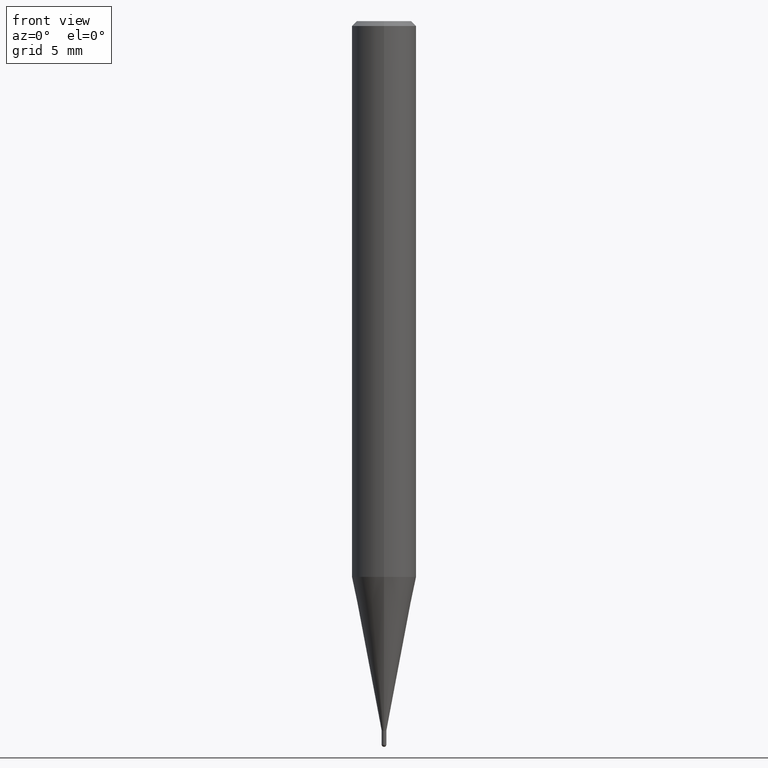
[diagram: clean part render]
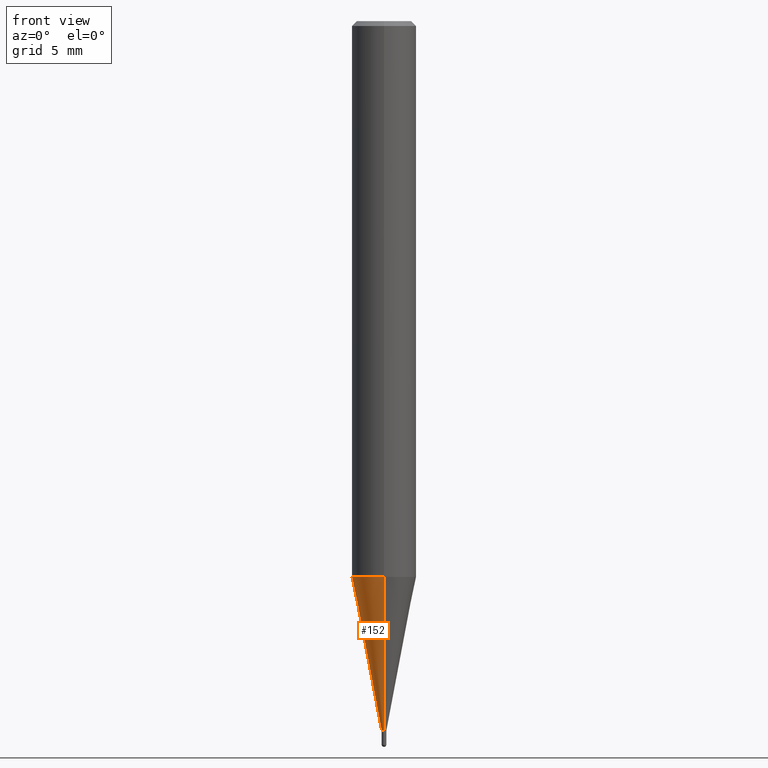
[diagram: same view with one face highlighted and labeled with its STEP entity id]
A machine part, front view. The second image highlights one B-rep face of the part: STEP entity #152.
In plain terms, the highlighted conical surface has half-angle 11 deg.
Its self-contained STEP definition (entity closure, byte-faithful):
#96=EDGE_CURVE('',#132,#188,#237,.T.);
#112=VERTEX_POINT('',#256);
#132=VERTEX_POINT('',#278);
#134=EDGE_CURVE('',#192,#188,#280,.T.);
#152=ADVANCED_FACE('',(#300),#301,.T.);
#188=VERTEX_POINT('',#341);
#192=VERTEX_POINT('',#345);
#194=EDGE_CURVE('',#112,#192,#347,.T.);
#206=EDGE_CURVE('',#132,#112,#361,.T.);
#237=CIRCLE('',#388,0.14495);
#256=CARTESIAN_POINT('',(2.44915147732706E-016,-1.99995,-34.457));
#278=CARTESIAN_POINT('',(1.77506690986554E-017,-0.14495,-44.0));
#280=LINE('',#445,#446);
#300=FACE_OUTER_BOUND('',#470,.T.);
#301=CONICAL_SURFACE('',#471,1.07245,0.19198911666217);
#341=CARTESIAN_POINT('',(0.0,0.14495,-44.0));
#345=CARTESIAN_POINT('',(0.0,1.99995,-34.457));
#347=CIRCLE('',#528,1.99995);
#361=LINE('',#545,#546);
#388=AXIS2_PLACEMENT_3D('',#559,#560,#561);
#445=CARTESIAN_POINT('',(-1.31332908415681E-016,1.07245,-39.2285));
#446=VECTOR('',#615,1.0);
#470=EDGE_LOOP('',(#645,#646,#647,#648));
#471=AXIS2_PLACEMENT_3D('',#649,#650,#651);
#528=AXIS2_PLACEMENT_3D('',#699,#700,#701);
#545=CARTESIAN_POINT('',(1.31332908415681E-016,-1.07245,-39.2285));
#546=VECTOR('',#717,1.0);
#559=CARTESIAN_POINT('',(0.0,0.0,-44.0));
#560=DIRECTION('',(0.0,0.0,-1.0));
#561=DIRECTION('',(0.0,1.0,0.0));
#615=DIRECTION('',(2.33669392942694E-017,-0.190811841056793,-0.981626630299177));
#645=ORIENTED_EDGE('',*,*,#134,.T.);
#646=ORIENTED_EDGE('',*,*,#96,.F.);
#647=ORIENTED_EDGE('',*,*,#206,.T.);
#648=ORIENTED_EDGE('',*,*,#194,.T.);
#649=CARTESIAN_POINT('',(0.0,0.0,-39.2285));
#650=DIRECTION('',(-0.0,-0.0,1.0));
#651=DIRECTION('',(0.0,1.0,0.0));
#699=CARTESIAN_POINT('',(0.0,0.0,-34.457));
#700=DIRECTION('',(0.0,0.0,-1.0));
#701=DIRECTION('',(0.0,1.0,0.0));
#717=DIRECTION('',(2.33669392942694E-017,-0.190811841056793,0.981626630299177));